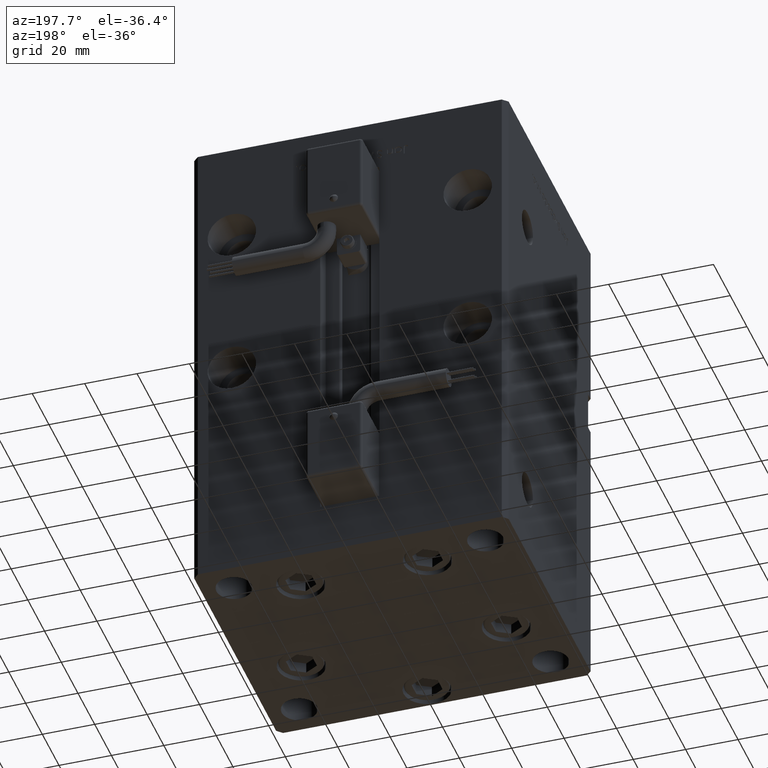
[diagram: clean part render]
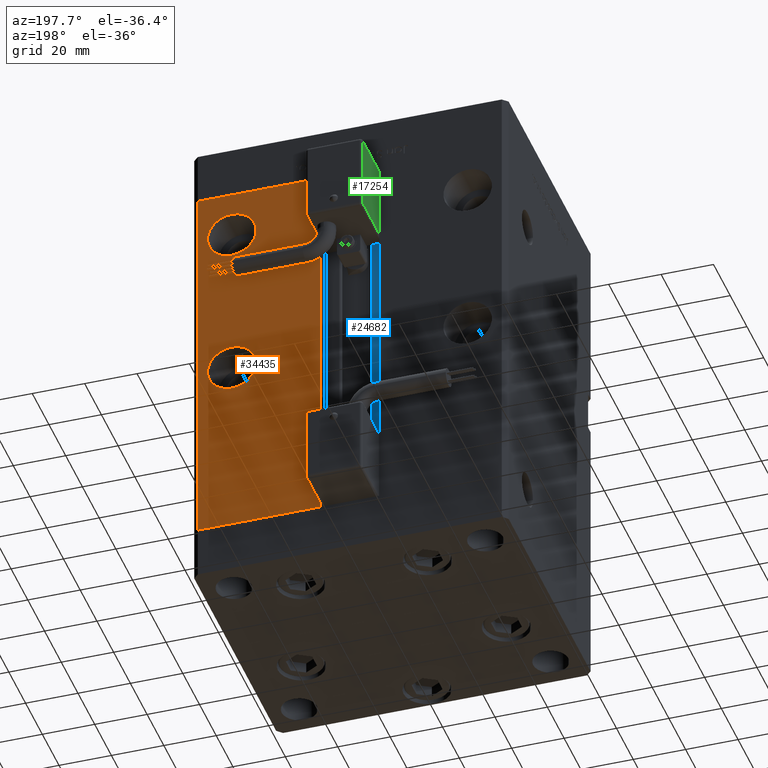
[diagram: same view with three faces highlighted in distinct colors, each labeled with its STEP entity id]
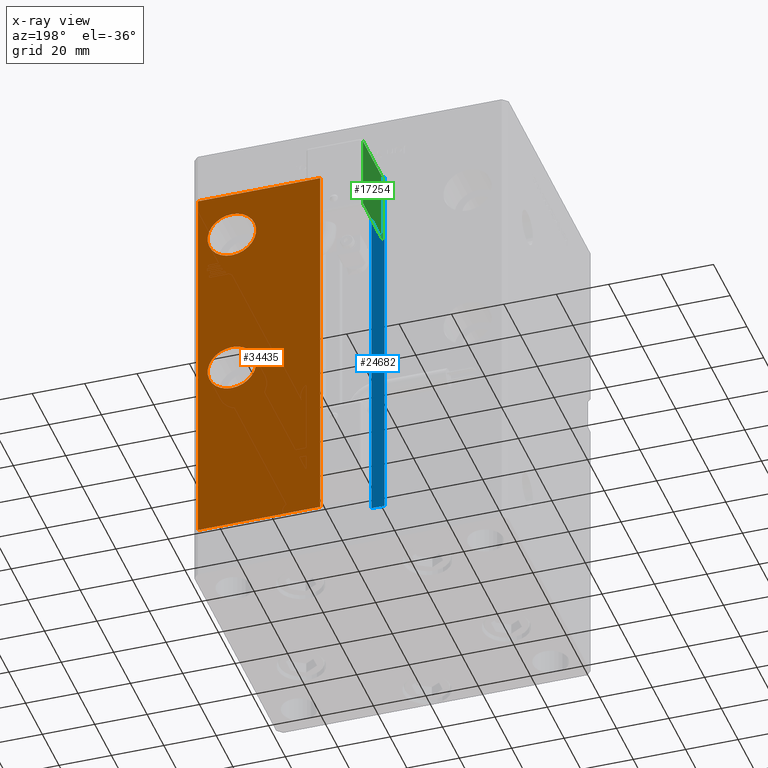
[diagram: x-ray of the same camera — body ghosted, the three highlighted faces saturated]
A machine part, auxiliary view with three faces highlighted in distinct colors.
The next image is the same camera in x-ray (body ghosted, the three faces saturated) — at least one of them is partly hidden behind the body in this view.
Their STEP definitions:

[orange] entity #34435 — the highlighted planar face has unit normal (0, -1, 0).
#580 = DIRECTION ( 'NONE',  ( 0.000000000000000000, 0.000000000000000000, 1.000000000000000000 ) ) ;
#2668 = VECTOR ( 'NONE', #38906, 1000.000000000000000 ) ;
#2966 = FACE_OUTER_BOUND ( 'NONE', #46745, .T. ) ;
#3932 = VECTOR ( 'NONE', #38632, 1000.000000000000000 ) ;
#4027 = VERTEX_POINT ( 'NONE', #48992 ) ;
#4176 = CARTESIAN_POINT ( 'NONE',  ( 11.24999999999999112, 51.00000000000000711, 148.5000000000000000 ) ) ;
#4807 = CARTESIAN_POINT ( 'NONE',  ( 57.99999999999999289, 51.00000000000000711, 0.000000000000000000 ) ) ;
#5515 = DIRECTION ( 'NONE',  ( -0.000000000000000000, -0.000000000000000000, -1.000000000000000000 ) ) ;
#6095 = CARTESIAN_POINT ( 'NONE',  ( 57.99999999999999289, 51.00000000000000711, 148.5000000000000000 ) ) ;
#8420 = CARTESIAN_POINT ( 'NONE',  ( -11.24999999999999822, 51.00000000000000711, 148.5000000000000000 ) ) ;
#8427 = CARTESIAN_POINT ( 'NONE',  ( 11.24999999999999822, 51.00000000000000711, 0.000000000000000000 ) ) ;
#10044 = LINE ( 'NONE', #48514, #38300 ) ;
#10057 = EDGE_CURVE ( 'NONE', #45142, #23802, #46640, .T. ) ;
#10242 = AXIS2_PLACEMENT_3D ( 'NONE', #35169, #48564, #31743 ) ;
#11551 = FACE_BOUND ( 'NONE', #34616, .T. ) ;
#12410 = CARTESIAN_POINT ( 'NONE',  ( 45.00000000000000000, 51.00000000000000711, 139.7500000000000000 ) ) ;
#12863 = CARTESIAN_POINT ( 'NONE',  ( 45.00000000000000000, 51.00000000000000711, 130.5000000000000000 ) ) ;
#14149 = CIRCLE ( 'NONE', #36000, 9.250000000000008882 ) ;
#16127 = ORIENTED_EDGE ( 'NONE', *, *, #53059, .F. ) ;
#17985 = DIRECTION ( 'NONE',  ( 0.000000000000000000, 1.000000000000000000, 0.000000000000000000 ) ) ;
#19319 = EDGE_LOOP ( 'NONE', ( #53490, #30191 ) ) ;
#19372 = CARTESIAN_POINT ( 'NONE',  ( 45.00000000000000000, 51.00000000000000711, 121.2500000000000000 ) ) ;
#19438 = DIRECTION ( 'NONE',  ( -1.000000000000000000, 0.000000000000000000, 0.000000000000000000 ) ) ;
#19867 = EDGE_CURVE ( 'NONE', #25517, #54035, #14149, .T. ) ;
#20376 = PLANE ( 'NONE',  #56135 ) ;
#23184 = ORIENTED_EDGE ( 'NONE', *, *, #36646, .F. ) ;
#23802 = VERTEX_POINT ( 'NONE', #4176 ) ;
#24037 = DIRECTION ( 'NONE',  ( 0.000000000000000000, 1.000000000000000000, -0.000000000000000000 ) ) ;
#24393 = CIRCLE ( 'NONE', #31643, 9.250000000000008882 ) ;
#25517 = VERTEX_POINT ( 'NONE', #19372 ) ;
#25579 = CARTESIAN_POINT ( 'NONE',  ( 45.00000000000000000, 51.00000000000000711, 79.75000000000001421 ) ) ;
#26450 = ORIENTED_EDGE ( 'NONE', *, *, #49119, .T. ) ;
#26727 = VERTEX_POINT ( 'NONE', #4807 ) ;
#27385 = ORIENTED_EDGE ( 'NONE', *, *, #37491, .T. ) ;
#29241 = VERTEX_POINT ( 'NONE', #39975 ) ;
#30191 = ORIENTED_EDGE ( 'NONE', *, *, #19867, .F. ) ;
#31643 = AXIS2_PLACEMENT_3D ( 'NONE', #54542, #24037, #41994 ) ;
#31743 = DIRECTION ( 'NONE',  ( 0.000000000000000000, 0.000000000000000000, -1.000000000000000000 ) ) ;
#31767 = VERTEX_POINT ( 'NONE', #25579 ) ;
#31893 = DIRECTION ( 'NONE',  ( 0.000000000000000000, 1.000000000000000000, 0.000000000000000000 ) ) ;
#32596 = VECTOR ( 'NONE', #5515, 1000.000000000000000 ) ;
#34343 = ORIENTED_EDGE ( 'NONE', *, *, #44238, .T. ) ;
#34435 = ADVANCED_FACE ( 'NONE', ( #11551, #42047, #2966 ), #20376, .F. ) ;
#34616 = EDGE_LOOP ( 'NONE', ( #16127, #23184 ) ) ;
#34796 = CIRCLE ( 'NONE', #10242, 9.250000000000008882 ) ;
#35169 = CARTESIAN_POINT ( 'NONE',  ( 45.00000000000000000, 51.00000000000000711, 70.50000000000000000 ) ) ;
#35426 = DIRECTION ( 'NONE',  ( 0.000000000000000000, -0.000000000000000000, -1.000000000000000000 ) ) ;
#36000 = AXIS2_PLACEMENT_3D ( 'NONE', #49280, #31893, #52998 ) ;
#36646 = EDGE_CURVE ( 'NONE', #4027, #31767, #24393, .T. ) ;
#37491 = EDGE_CURVE ( 'NONE', #29241, #26727, #40586, .T. ) ;
#38300 = VECTOR ( 'NONE', #19438, 1000.000000000000000 ) ;
#38632 = DIRECTION ( 'NONE',  ( -0.000000000000000000, -0.000000000000000000, 1.000000000000000000 ) ) ;
#38906 = DIRECTION ( 'NONE',  ( 1.000000000000000000, 0.000000000000000000, 0.000000000000000000 ) ) ;
#39975 = CARTESIAN_POINT ( 'NONE',  ( 57.99999999999999289, 51.00000000000000711, 148.5000000000000000 ) ) ;
#40586 = LINE ( 'NONE', #6095, #32596 ) ;
#40948 = EDGE_CURVE ( 'NONE', #54035, #25517, #54580, .T. ) ;
#41994 = DIRECTION ( 'NONE',  ( 0.000000000000000000, 0.000000000000000000, -1.000000000000000000 ) ) ;
#42047 = FACE_BOUND ( 'NONE', #19319, .T. ) ;
#44238 = EDGE_CURVE ( 'NONE', #23802, #29241, #47465, .T. ) ;
#44242 = CARTESIAN_POINT ( 'NONE',  ( 11.24999999999999822, 51.00000000000000711, 0.000000000000000000 ) ) ;
#45142 = VERTEX_POINT ( 'NONE', #44242 ) ;
#46640 = LINE ( 'NONE', #8427, #3932 ) ;
#46745 = EDGE_LOOP ( 'NONE', ( #26450, #54923, #34343, #27385 ) ) ;
#47465 = LINE ( 'NONE', #8420, #2668 ) ;
#48514 = CARTESIAN_POINT ( 'NONE',  ( -11.24999999999999822, 51.00000000000000711, 0.000000000000000000 ) ) ;
#48564 = DIRECTION ( 'NONE',  ( 0.000000000000000000, 1.000000000000000000, -0.000000000000000000 ) ) ;
#48992 = CARTESIAN_POINT ( 'NONE',  ( 45.00000000000000000, 51.00000000000000711, 61.25000000000000000 ) ) ;
#49119 = EDGE_CURVE ( 'NONE', #26727, #45142, #10044, .T. ) ;
#49280 = CARTESIAN_POINT ( 'NONE',  ( 45.00000000000000000, 51.00000000000000711, 130.5000000000000000 ) ) ;
#51831 = AXIS2_PLACEMENT_3D ( 'NONE', #12863, #17985, #580 ) ;
#52831 = DIRECTION ( 'NONE',  ( 0.000000000000000000, -1.000000000000000000, 0.000000000000000000 ) ) ;
#52998 = DIRECTION ( 'NONE',  ( 0.000000000000000000, 0.000000000000000000, 1.000000000000000000 ) ) ;
#53059 = EDGE_CURVE ( 'NONE', #31767, #4027, #34796, .T. ) ;
#53490 = ORIENTED_EDGE ( 'NONE', *, *, #40948, .F. ) ;
#54035 = VERTEX_POINT ( 'NONE', #12410 ) ;
#54542 = CARTESIAN_POINT ( 'NONE',  ( 45.00000000000000000, 51.00000000000000711, 70.50000000000000000 ) ) ;
#54580 = CIRCLE ( 'NONE', #51831, 9.250000000000008882 ) ;
#54923 = ORIENTED_EDGE ( 'NONE', *, *, #10057, .T. ) ;
#55142 = CARTESIAN_POINT ( 'NONE',  ( -11.24999999999999822, 51.00000000000000711, 148.5000000000000000 ) ) ;
#56135 = AXIS2_PLACEMENT_3D ( 'NONE', #55142, #52831, #35426 ) ;

[blue] entity #24682 — the highlighted planar face has unit normal (0, -1, 0).
#543 = DIRECTION ( 'NONE',  ( 0.000000000000000000, 0.000000000000000000, -1.000000000000000000 ) ) ;
#3579 = LINE ( 'NONE', #21260, #54948 ) ;
#4516 = CARTESIAN_POINT ( 'NONE',  ( -6.183333333333997928, 44.50000000000000711, 0.000000000000000000 ) ) ;
#5088 = VERTEX_POINT ( 'NONE', #14587 ) ;
#6575 = CARTESIAN_POINT ( 'NONE',  ( -11.24999999999999822, 44.50000000000000711, 148.5000000000000000 ) ) ;
#9745 = EDGE_CURVE ( 'NONE', #5088, #14788, #55265, .T. ) ;
#10077 = EDGE_CURVE ( 'NONE', #5088, #41903, #3579, .T. ) ;
#12796 = CARTESIAN_POINT ( 'NONE',  ( 0.000000000000000000, 44.50000000000000711, 148.5000000000000000 ) ) ;
#14587 = CARTESIAN_POINT ( 'NONE',  ( -11.24999999999999822, 44.50000000000000711, 0.000000000000000000 ) ) ;
#14788 = VERTEX_POINT ( 'NONE', #53032 ) ;
#14875 = ORIENTED_EDGE ( 'NONE', *, *, #9745, .F. ) ;
#15658 = DIRECTION ( 'NONE',  ( 1.000000000000000000, -0.000000000000000000, -0.000000000000000000 ) ) ;
#16055 = EDGE_CURVE ( 'NONE', #49871, #41903, #51848, .T. ) ;
#16746 = EDGE_CURVE ( 'NONE', #14788, #49871, #16795, .T. ) ;
#16795 = LINE ( 'NONE', #4516, #22211 ) ;
#19866 = ORIENTED_EDGE ( 'NONE', *, *, #16746, .F. ) ;
#21260 = CARTESIAN_POINT ( 'NONE',  ( -11.24999999999999822, 44.50000000000000711, 0.000000000000000000 ) ) ;
#22211 = VECTOR ( 'NONE', #30451, 1000.000000000000000 ) ;
#24682 = ADVANCED_FACE ( 'NONE', ( #35602 ), #27052, .F. ) ;
#27052 = PLANE ( 'NONE',  #50511 ) ;
#30350 = DIRECTION ( 'NONE',  ( -0.000000000000000000, -0.000000000000000000, 1.000000000000000000 ) ) ;
#30451 = DIRECTION ( 'NONE',  ( -0.000000000000000000, -0.000000000000000000, 1.000000000000000000 ) ) ;
#33125 = VECTOR ( 'NONE', #55835, 1000.000000000000000 ) ;
#33589 = CARTESIAN_POINT ( 'NONE',  ( -6.183333333333997928, 44.50000000000000711, 0.000000000000000000 ) ) ;
#35602 = FACE_OUTER_BOUND ( 'NONE', #43750, .T. ) ;
#39700 = CARTESIAN_POINT ( 'NONE',  ( -6.183333333333997928, 44.50000000000000711, 148.5000000000000000 ) ) ;
#41283 = VECTOR ( 'NONE', #15658, 1000.000000000000000 ) ;
#41903 = VERTEX_POINT ( 'NONE', #6575 ) ;
#43683 = ORIENTED_EDGE ( 'NONE', *, *, #10077, .T. ) ;
#43750 = EDGE_LOOP ( 'NONE', ( #19866, #14875, #43683, #49111 ) ) ;
#44453 = DIRECTION ( 'NONE',  ( 0.000000000000000000, -1.000000000000000000, -0.000000000000000000 ) ) ;
#49111 = ORIENTED_EDGE ( 'NONE', *, *, #16055, .F. ) ;
#49871 = VERTEX_POINT ( 'NONE', #39700 ) ;
#50511 = AXIS2_PLACEMENT_3D ( 'NONE', #51882, #44453, #543 ) ;
#51848 = LINE ( 'NONE', #12796, #33125 ) ;
#51882 = CARTESIAN_POINT ( 'NONE',  ( -6.183333333333997928, 44.50000000000000711, 0.000000000000000000 ) ) ;
#53032 = CARTESIAN_POINT ( 'NONE',  ( -6.183333333333997928, 44.50000000000000711, 0.000000000000000000 ) ) ;
#54948 = VECTOR ( 'NONE', #30350, 1000.000000000000000 ) ;
#55265 = LINE ( 'NONE', #33589, #41283 ) ;
#55835 = DIRECTION ( 'NONE',  ( -1.000000000000000000, 0.000000000000000000, 0.000000000000000000 ) ) ;

[green] entity #17254 — the highlighted planar face has unit normal (1, 0, 0).
#841 = LINE ( 'NONE', #34771, #43333 ) ;
#4457 = DIRECTION ( 'NONE',  ( -2.220446049250000002E-16, -1.200000000000000024E-16, 1.000000000000000000 ) ) ;
#7162 = VECTOR ( 'NONE', #4457, 1000.000000000000000 ) ;
#7828 = FACE_OUTER_BOUND ( 'NONE', #22676, .T. ) ;
#8355 = DIRECTION ( 'NONE',  ( -3.108624468950000014E-32, 1.000000000000000000, 1.400000000000000069E-16 ) ) ;
#10433 = AXIS2_PLACEMENT_3D ( 'NONE', #12108, #52269, #13215 ) ;
#12108 = CARTESIAN_POINT ( 'NONE',  ( -10.80000000000000071, 26.00000000000000000, -55.00000000000000000 ) ) ;
#12356 = CARTESIAN_POINT ( 'NONE',  ( -10.80000000000000071, 26.00000000000000000, -26.00000000000000000 ) ) ;
#12440 = ORIENTED_EDGE ( 'NONE', *, *, #38614, .T. ) ;
#13215 = DIRECTION ( 'NONE',  ( 0.000000000000000000, -2.220446049250000002E-16, 1.000000000000000000 ) ) ;
#14920 = LINE ( 'NONE', #37695, #19589 ) ;
#17254 = ADVANCED_FACE ( 'NONE', ( #7828 ), #47424, .F. ) ;
#18235 = EDGE_CURVE ( 'NONE', #20923, #25439, #14920, .T. ) ;
#18421 = CARTESIAN_POINT ( 'NONE',  ( -10.80000000000000071, 27.00000000000000000, -55.00000000000000000 ) ) ;
#19589 = VECTOR ( 'NONE', #50825, 1000.000000000000000 ) ;
#20923 = VERTEX_POINT ( 'NONE', #22598 ) ;
#22598 = CARTESIAN_POINT ( 'NONE',  ( -10.80000000000000071, 50.50000000000000000, -54.00000000000000000 ) ) ;
#22676 = EDGE_LOOP ( 'NONE', ( #40009, #43506, #28331, #12440 ) ) ;
#25107 = EDGE_CURVE ( 'NONE', #54727, #36461, #47394, .T. ) ;
#25439 = VERTEX_POINT ( 'NONE', #33385 ) ;
#28331 = ORIENTED_EDGE ( 'NONE', *, *, #18235, .T. ) ;
#33286 = EDGE_CURVE ( 'NONE', #36461, #20923, #841, .T. ) ;
#33385 = CARTESIAN_POINT ( 'NONE',  ( -10.80000000000000071, 27.00000000000000000, -54.00000000000000000 ) ) ;
#34771 = CARTESIAN_POINT ( 'NONE',  ( -10.80000000000000071, 50.50000000000000000, -55.00000000000000000 ) ) ;
#35911 = VECTOR ( 'NONE', #8355, 1000.000000000000000 ) ;
#36461 = VERTEX_POINT ( 'NONE', #51156 ) ;
#37695 = CARTESIAN_POINT ( 'NONE',  ( -10.80000000000000071, 26.00000000000000000, -54.00000000000000000 ) ) ;
#38614 = EDGE_CURVE ( 'NONE', #25439, #54727, #48632, .T. ) ;
#40009 = ORIENTED_EDGE ( 'NONE', *, *, #25107, .T. ) ;
#43333 = VECTOR ( 'NONE', #52462, 1000.000000000000000 ) ;
#43506 = ORIENTED_EDGE ( 'NONE', *, *, #33286, .T. ) ;
#47394 = LINE ( 'NONE', #12356, #35911 ) ;
#47424 = PLANE ( 'NONE',  #10433 ) ;
#48432 = CARTESIAN_POINT ( 'NONE',  ( -10.80000000000000071, 27.00000000000000000, -26.00000000000000000 ) ) ;
#48632 = LINE ( 'NONE', #18421, #7162 ) ;
#50825 = DIRECTION ( 'NONE',  ( 3.108624468950000014E-32, -1.000000000000000000, -1.400000000000000069E-16 ) ) ;
#51156 = CARTESIAN_POINT ( 'NONE',  ( -10.80000000000000071, 50.50000000000000000, -26.00000000000000000 ) ) ;
#52269 = DIRECTION ( 'NONE',  ( 1.000000000000000000, 4.930380657629929601E-32, 1.094764425253299406E-47 ) ) ;
#52462 = DIRECTION ( 'NONE',  ( 2.220446049250000002E-16, 1.200000000000000024E-16, -1.000000000000000000 ) ) ;
#54727 = VERTEX_POINT ( 'NONE', #48432 ) ;